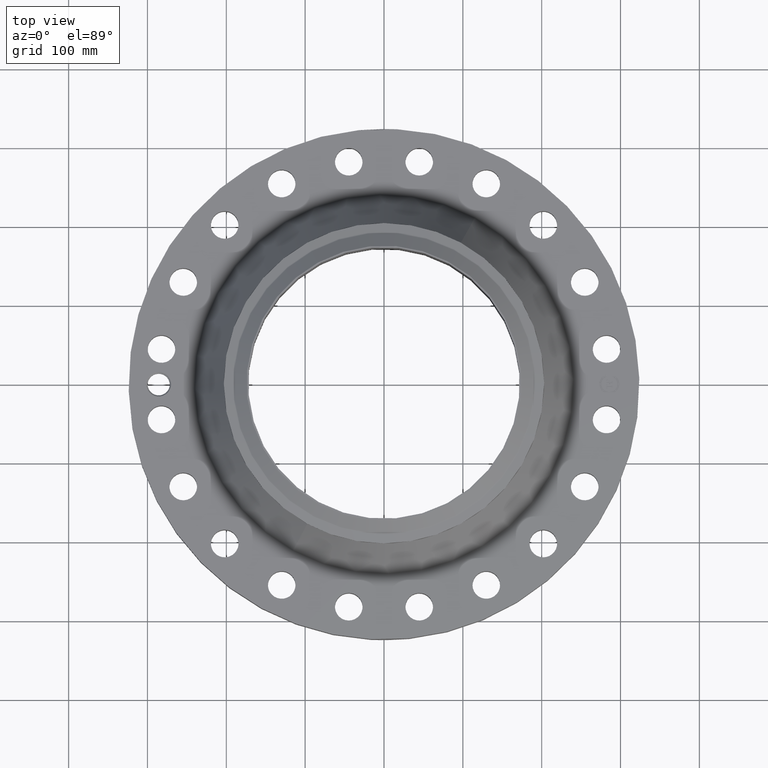
[diagram: clean part render]
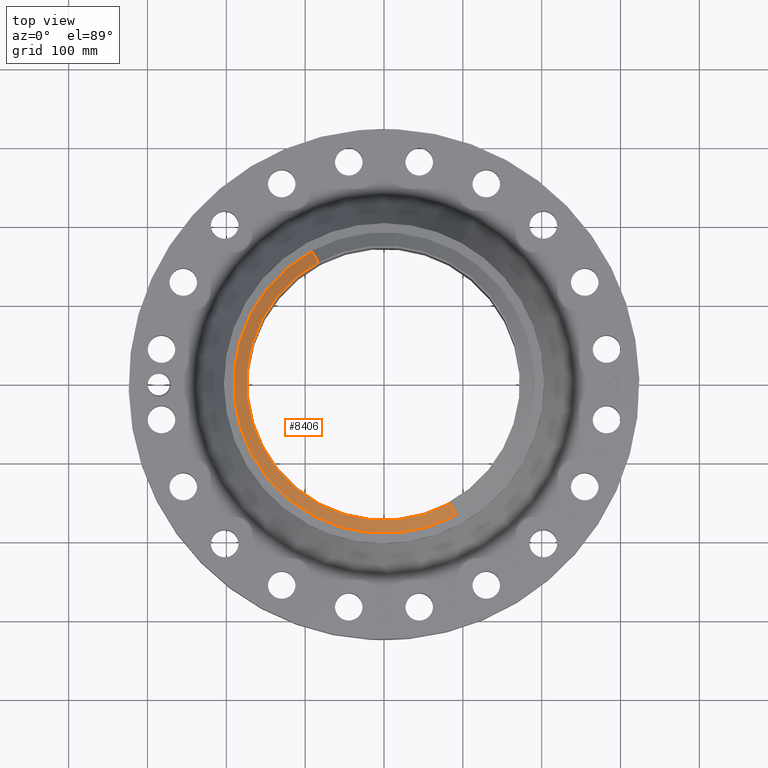
[diagram: same view with one face highlighted and labeled with its STEP entity id]
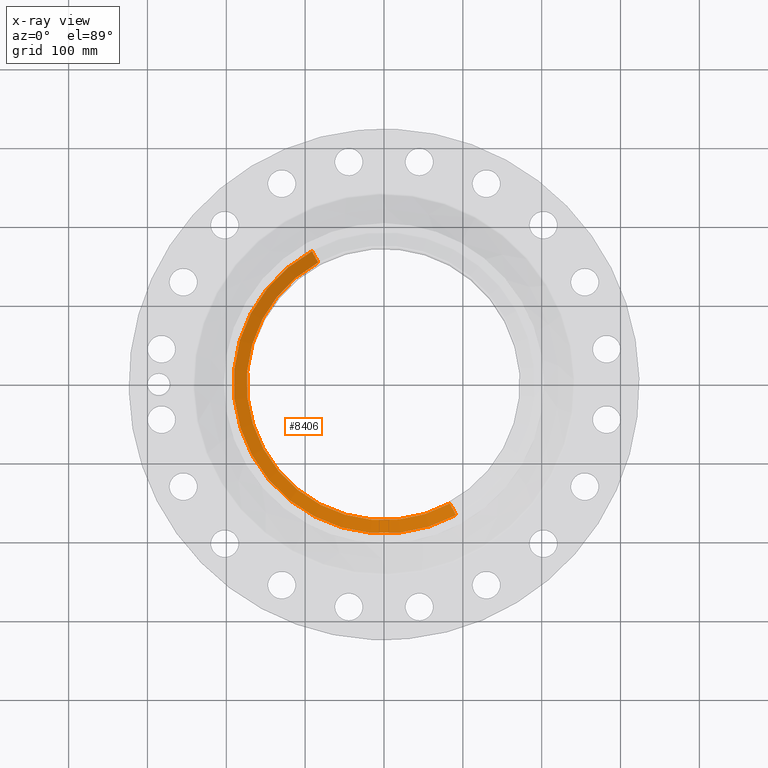
[diagram: x-ray of the same camera — body ghosted, the highlighted face saturated]
A machine part, top view. The second image highlights one B-rep face of the part: STEP entity #8406.
The next image is the same camera in x-ray: the body ghosted, the highlighted face saturated — about 0% of this face is hidden behind the body in this view.
In plain terms, the highlighted conical surface has half-angle 52.5 deg.
Its self-contained STEP definition (entity closure, byte-faithful):
#4852=AXIS2_PLACEMENT_3D('Circle Axis2P3D',#4850,#4851,$) ;
#8379=AXIS2_PLACEMENT_3D('Cone Axis2P3D',#8376,#8377,#8378) ;
#8390=AXIS2_PLACEMENT_3D('Circle Axis2P3D',#8388,#8389,$) ;
#4845=CARTESIAN_POINT('Vertex',(3.2887346197,-6.01998834133,5.81000000002)) ;
#4847=CARTESIAN_POINT('Vertex',(-3.2887346197,6.01998834133,5.81000000002)) ;
#4850=CARTESIAN_POINT('Axis2P3D Location',(0.,0.,5.81000000002)) ;
#8376=CARTESIAN_POINT('Axis2P3D Location',(0.,0.,5.81000000002)) ;
#8381=CARTESIAN_POINT('Line Origine',(-3.44367592225,6.30360649323,5.56201437259)) ;
#8385=CARTESIAN_POINT('Vertex',(-3.5986172248,6.58722464514,5.31402874515)) ;
#8388=CARTESIAN_POINT('Axis2P3D Location',(0.,0.,5.31402874515)) ;
#8392=CARTESIAN_POINT('Vertex',(3.5986172248,-6.58722464514,5.31402874515)) ;
#8395=CARTESIAN_POINT('Line Origine',(3.44367592225,-6.30360649323,5.56201437259)) ;
#4851=DIRECTION('Axis2P3D Direction',(0.,0.,-0.0393700787402)) ;
#8377=DIRECTION('Axis2P3D Direction',(-0.,-0.,-0.0393700787402)) ;
#8378=DIRECTION('Axis2P3D XDirection',(-0.0188750212049,0.0345504945626,0.)) ;
#8382=DIRECTION('Vector Direction',(-0.014974561121,0.02741075027,-0.023966985394)) ;
#8389=DIRECTION('Axis2P3D Direction',(0.,0.,-0.0393700787402)) ;
#8396=DIRECTION('Vector Direction',(0.014974561121,-0.02741075027,-0.023966985394)) ;
#8383=VECTOR('Line Direction',#8382,0.0393700787402) ;
#8397=VECTOR('Line Direction',#8396,0.0393700787402) ;
#8401=ORIENTED_EDGE('',*,*,#4854,.F.) ;
#8402=ORIENTED_EDGE('',*,*,#8387,.T.) ;
#8403=ORIENTED_EDGE('',*,*,#8394,.T.) ;
#8404=ORIENTED_EDGE('',*,*,#8399,.F.) ;
#8406=ADVANCED_FACE('PartBody',(#8405),#8380,.T.) ;
#4853=CIRCLE('generated circle',#4852,6.85974015751) ;
#8391=CIRCLE('generated circle',#8390,7.50610248105) ;
#8380=CONICAL_SURFACE('Cone',#8379,6.85974015751,0.916297857297) ;
#4854=EDGE_CURVE('',#4848,#4846,#4853,.F.) ;
#8387=EDGE_CURVE('',#4848,#8386,#8384,.T.) ;
#8394=EDGE_CURVE('',#8386,#8393,#8391,.F.) ;
#8399=EDGE_CURVE('',#4846,#8393,#8398,.T.) ;
#8400=EDGE_LOOP('',(#8401,#8402,#8403,#8404)) ;
#8405=FACE_OUTER_BOUND('',#8400,.T.) ;
#8384=LINE('Line',#8381,#8383) ;
#8398=LINE('Line',#8395,#8397) ;
#4846=VERTEX_POINT('',#4845) ;
#4848=VERTEX_POINT('',#4847) ;
#8386=VERTEX_POINT('',#8385) ;
#8393=VERTEX_POINT('',#8392) ;